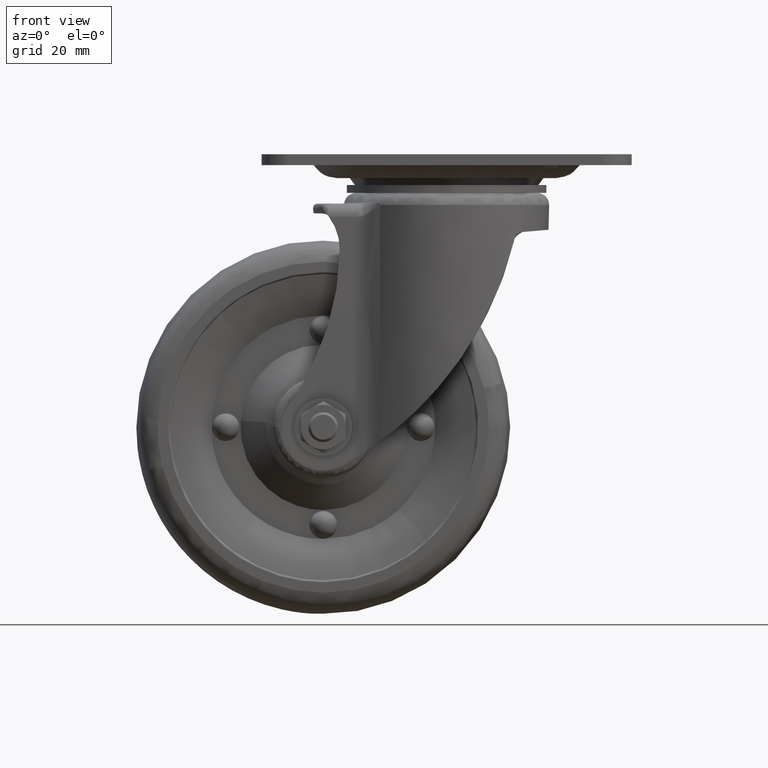
[diagram: clean part render]
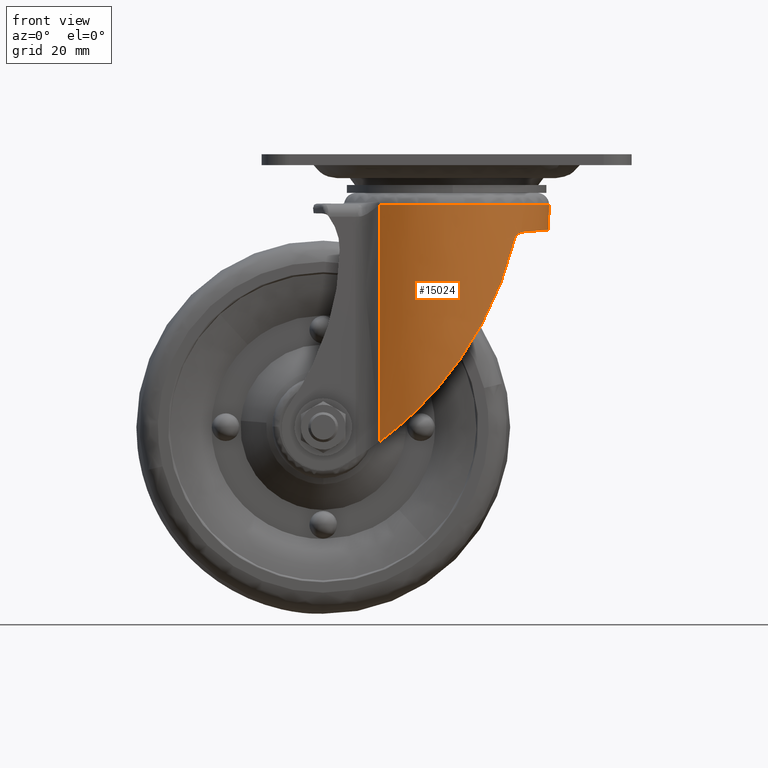
[diagram: same view with one face highlighted and labeled with its STEP entity id]
A machine part, front view. The second image highlights one B-rep face of the part: STEP entity #15024.
In plain terms, the highlighted face is a freeform B-spline surface patch.
Its self-contained STEP definition (entity closure, byte-faithful):
#13117=CARTESIAN_POINT('',(-17.809410793725050,-20.855587073500232,-13.514989000000019));
#13118=VERTEX_POINT('',#13117);
#13132=CARTESIAN_POINT('',(27.416338891092579,-0.689192867609886,-13.514988998429271));
#13133=VERTEX_POINT('',#13132);
#13134=CARTESIAN_POINT('',(27.416338891092579,-0.689192867609886,-13.514988998429271));
#13135=CARTESIAN_POINT('',(27.370144709573019,-2.538608974518831,-13.514988998454569));
#13136=CARTESIAN_POINT('',(27.013193768993290,-5.345576483390386,-13.514988998501011));
#13137=CARTESIAN_POINT('',(25.943602558763601,-9.060891404035905,-13.514988998580170));
#13138=CARTESIAN_POINT('',(24.625711979083309,-12.264767364244580,-13.514988998659570));
#13139=CARTESIAN_POINT('',(22.922329263105610,-15.194380939394270,-13.514988998746979));
#13140=CARTESIAN_POINT('',(20.815032832213021,-17.942075658335170,-13.514988998843270));
#13141=CARTESIAN_POINT('',(18.472981436152569,-20.385558734705899,-13.514988998942989));
#13142=CARTESIAN_POINT('',(15.122858887308730,-23.041036458252389,-13.514988999074051));
#13143=CARTESIAN_POINT('',(11.077529312509361,-25.243881503777590,-13.514988999219961));
#13144=CARTESIAN_POINT('',(7.174826760455997,-26.548468967180280,-13.514988999349679));
#13145=CARTESIAN_POINT('',(3.461774166919727,-27.282203580856720,-13.514988999466830));
#13146=CARTESIAN_POINT('',(-0.482874379210664,-27.548978950495190,-13.514988999584510));
#13147=CARTESIAN_POINT('',(-4.500102279900261,-27.147139718630221,-13.514988999695721));
#13148=CARTESIAN_POINT('',(-8.568044536720644,-26.149740407417241,-13.514988999800710));
#13149=CARTESIAN_POINT('',(-12.990060803550790,-24.377356289009509,-13.514988999905819));
#13150=CARTESIAN_POINT('',(-16.158199184875048,-22.266249754600238,-13.514988999970470));
#13151=CARTESIAN_POINT('',(-17.809410793725050,-20.855587073500232,-13.514989000000019));
#13152=B_SPLINE_CURVE_WITH_KNOTS('',3,(#13134,#13135,#13136,#13137,#13138,#13139,#13140,#13141,#13142,#13143,#13144,#13145,#13146,#13147,#13148,#13149,#13150,#13151),.UNSPECIFIED.,.F.,.U.,(4,1,1,1,1,1,1,1,1,1,1,1,1,1,1,4),(0.000000059303176,5.549911955859287,8.445546837084201,11.582500087607579,15.925952745662309,18.580291807629589,21.958540630681661,26.060692113063919,31.369221516042700,35.712679370151633,38.367024260346007,42.710492123987308,47.536550693371581,50.432188047149062,55.258238666136627,61.773375143991487),.UNSPECIFIED.);
#13153=EDGE_CURVE('',#13133,#13118,#13152,.T.);
#13204=CARTESIAN_POINT('',(27.425000000000001,0.0,-13.514989000000019));
#13205=VERTEX_POINT('',#13204);
#13206=CARTESIAN_POINT('',(27.425000000000001,0.0,-13.514989000000019));
#13207=CARTESIAN_POINT('',(27.424999999999994,-0.344650856021881,-13.514988999214646));
#13208=CARTESIAN_POINT('',(27.416338891092575,-0.689192867609886,-13.514988998429267));
#13216=(BOUNDED_CURVE()B_SPLINE_CURVE(2,(#13206,#13207,#13208),.UNSPECIFIED.,.F.,.U.)B_SPLINE_CURVE_WITH_KNOTS((3,3),(0.0,0.011612402897055),.UNSPECIFIED.)CURVE()GEOMETRIC_REPRESENTATION_ITEM()RATIONAL_B_SPLINE_CURVE((1.0,0.996335781353829,0.992841764240547))REPRESENTATION_ITEM(''));
#13217=EDGE_CURVE('',#13205,#13133,#13216,.T.);
#13219=CARTESIAN_POINT('',(-17.809410793729342,20.855587073496569,-13.514989000000019));
#13220=VERTEX_POINT('',#13219);
#13221=CARTESIAN_POINT('',(-17.809410793729342,20.855587073496569,-13.514989000000019));
#13222=CARTESIAN_POINT('',(-17.407408522345190,21.198869900111600,-13.514988999999980));
#13223=CARTESIAN_POINT('',(-16.963816380801472,21.556077711161500,-13.514989000000080));
#13224=CARTESIAN_POINT('',(-16.476828912088688,21.923360915446711,-13.514989000000011));
#13225=CARTESIAN_POINT('',(-16.379339016086860,21.996737665960801,-13.514989000000019));
#13226=CARTESIAN_POINT('',(-15.268520955753900,22.820042821982021,-13.514989000000041));
#13227=CARTESIAN_POINT('',(-12.960629670096759,24.281173016396171,-13.514989000000000));
#13228=CARTESIAN_POINT('',(-9.605727643534490,25.769878054157349,-13.514989000000069));
#13229=CARTESIAN_POINT('',(-6.092184222451769,26.813076968431751,-13.514988999999950));
#13230=CARTESIAN_POINT('',(-2.070053252011648,27.479182623380190,-13.514989000000011));
#13231=CARTESIAN_POINT('',(2.179402166805020,27.458134872017212,-13.514989000000240));
#13232=CARTESIAN_POINT('',(5.876909756450394,26.841728988624691,-13.514988999999771));
#13233=CARTESIAN_POINT('',(9.484355174460896,25.836331577147330,-13.514989000000350));
#13234=CARTESIAN_POINT('',(13.224826475161059,24.191795464136980,-13.514988999999989));
#13235=CARTESIAN_POINT('',(17.422271081200002,21.368223424400870,-13.514988999999920));
#13236=CARTESIAN_POINT('',(20.531500198458328,18.352907396947959,-13.514989000000311));
#13237=CARTESIAN_POINT('',(22.784350671851509,15.358114755336659,-13.514989000000000));
#13238=CARTESIAN_POINT('',(24.412391751092802,12.631443268260780,-13.514989000000041));
#13239=CARTESIAN_POINT('',(25.682782665757330,9.806462986611079,-13.514989000000019));
#13240=CARTESIAN_POINT('',(26.628994847960900,6.774218926554003,-13.514989000000019));
#13241=CARTESIAN_POINT('',(27.262600899882749,3.578544758500911,-13.514988999999950));
#13242=CARTESIAN_POINT('',(27.425064571824890,1.301300663855342,-13.514989000000440));
#13243=CARTESIAN_POINT('',(27.425000000000001,0.0,-13.514989000000019));
#13244=B_SPLINE_CURVE_WITH_KNOTS('',3,(#13221,#13222,#13223,#13224,#13225,#13226,#13227,#13228,#13229,#13230,#13231,#13232,#13233,#13234,#13235,#13236,#13237,#13238,#13239,#13240,#13241,#13242,#13243),.UNSPECIFIED.,.F.,.U.,(4,1,1,1,1,1,1,1,1,1,1,1,1,1,1,1,1,1,1,1,4),(-0.000008777833926,1.585889864309991,1.707888320422747,1.829886776535410,1.951946886555604,5.855864107907983,10.003764080079240,12.931704660612970,16.835638888398140,22.203548854672849,25.619473519935749,28.059422607863102,33.427209471957703,37.819159144268937,43.187047255784151,46.358989983688858,49.042945396970012,52.702884044444708,55.630827793817041,58.558739524195161,62.462642689829387),.UNSPECIFIED.);
#13245=EDGE_CURVE('',#13220,#13205,#13244,.T.);
#13880=CARTESIAN_POINT('',(-17.846202660859849,20.824112840347350,-13.547320495268080));
#13881=VERTEX_POINT('',#13880);
#13882=CARTESIAN_POINT('',(-17.846202660859849,20.824112840347350,-13.547320495268080));
#13883=CARTESIAN_POINT('',(-17.809410793729342,20.855587073496569,-13.514989000000019));
#13884=QUASI_UNIFORM_CURVE('',1,(#13882,#13883),.UNSPECIFIED.,.F.,.U.);
#13885=EDGE_CURVE('',#13881,#13220,#13884,.T.);
#14472=CARTESIAN_POINT('',(-17.846202660859799,20.824112840347350,-76.803480371900108));
#14473=VERTEX_POINT('',#14472);
#14474=CARTESIAN_POINT('',(-17.846202660859799,20.824112840347350,-76.803480371900108));
#14475=CARTESIAN_POINT('',(-17.846202660859849,20.824112840347350,-13.547320495268080));
#14476=QUASI_UNIFORM_CURVE('',1,(#14474,#14475),.UNSPECIFIED.,.F.,.U.);
#14477=EDGE_CURVE('',#14473,#13881,#14476,.T.);
#14675=CARTESIAN_POINT('',(18.218237527660801,20.499425513553600,-22.550122951543550));
#14676=VERTEX_POINT('',#14675);
#14677=CARTESIAN_POINT('',(-17.846202660859799,20.824112840347350,-76.803480371900108));
#14678=CARTESIAN_POINT('',(-17.499274141282331,21.121431735308299,-76.547995395013587));
#14679=CARTESIAN_POINT('',(-17.147941598564341,21.407471329844942,-76.285633717089070));
#14680=CARTESIAN_POINT('',(-16.132866213155008,22.193619586237251,-75.516250786476448));
#14681=CARTESIAN_POINT('',(-15.459352316206070,22.667142128612319,-74.992201255253306));
#14682=CARTESIAN_POINT('',(-14.603067683565071,23.214683256564690,-74.306155545968849));
#14683=CARTESIAN_POINT('',(-14.431124240889361,23.321940264616419,-74.167420682210818));
#14684=CARTESIAN_POINT('',(-14.087490623986840,23.531104054295010,-73.888159347732852));
#14685=CARTESIAN_POINT('',(-13.915597003169379,23.633142688656349,-73.747470538788932));
#14686=CARTESIAN_POINT('',(-13.399770252729301,23.931859005839769,-73.322240444555348));
#14687=CARTESIAN_POINT('',(-13.055692544603589,24.121141598944430,-73.034536076610678));
#14688=CARTESIAN_POINT('',(-12.023504080352289,24.661067695302489,-72.158833086877777));
#14689=CARTESIAN_POINT('',(-11.335452967758179,24.983841847963699,-71.558251667962466));
#14690=CARTESIAN_POINT('',(-9.962389512339543,25.562387844621650,-70.323665558663734));
#14691=CARTESIAN_POINT('',(-9.277371663200638,25.818141976381131,-69.689658945723266));
#14692=CARTESIAN_POINT('',(-7.912834551112366,26.268482294905461,-68.388147904290932));
#14693=CARTESIAN_POINT('',(-7.233311548883998,26.463056798000149,-67.720642324951541));
#14694=CARTESIAN_POINT('',(-6.388707738955641,26.671044925950241,-66.865177949455457));
#14695=CARTESIAN_POINT('',(-6.220026430843379,26.710878947901399,-66.693030604685646));
#14696=CARTESIAN_POINT('',(-5.883174925941185,26.787087272976638,-66.346622005062713));
#14697=CARTESIAN_POINT('',(-5.714997491031681,26.823459301244490,-66.172350116272696));
#14698=CARTESIAN_POINT('',(-5.213057161077494,26.927138318716061,-65.648230405210754));
#14699=CARTESIAN_POINT('',(-4.881279129563636,26.989152958383212,-65.296457793049044));
#14700=CARTESIAN_POINT('',(-3.894473681134695,27.155260211253509,-64.234090477251698));
#14701=CARTESIAN_POINT('',(-3.247973250698395,27.239453665132981,-63.516448021708392));
#14702=CARTESIAN_POINT('',(-1.342496695311521,27.421821401977951,-61.335495605275163));
#14703=CARTESIAN_POINT('',(-0.117517192353360,27.450131687863870,-59.844186824336539));
#14704=CARTESIAN_POINT('',(2.241564612659198,27.358709721995989,-56.787134320160561));
#14705=CARTESIAN_POINT('',(3.375669281817199,27.238782726746809,-55.221390435551193));
#14706=CARTESIAN_POINT('',(4.599786899427679,27.036849613132851,-53.417724313674903));
#14707=CARTESIAN_POINT('',(4.735080592881124,27.013477908442351,-53.216730255349049));
#14708=CARTESIAN_POINT('',(5.004225943392333,26.964916236215458,-52.813566621500058));
#14709=CARTESIAN_POINT('',(5.138145585606142,26.939712733213049,-52.611293146025012));
#14710=CARTESIAN_POINT('',(5.537201537092662,26.861556008725739,-52.003522362085562));
#14711=CARTESIAN_POINT('',(5.799489303414649,26.806091547136930,-51.597305592223478));
#14712=CARTESIAN_POINT('',(6.575325825574135,26.630371133464049,-50.375490229243873));
#14713=CARTESIAN_POINT('',(7.077854183553438,26.500800927659320,-49.556726847343597));
#14714=CARTESIAN_POINT('',(8.542875397278900,26.080302164234521,-47.087324869607947));
#14715=CARTESIAN_POINT('',(9.462883679825231,25.757693407021350,-45.423588522407009));
#14716=CARTESIAN_POINT('',(11.195475287706749,25.053269612493992,-42.058561333532879));
#14717=CARTESIAN_POINT('',(12.008041545570050,24.671361483284770,-40.357282288096087));
#14718=CARTESIAN_POINT('',(13.529273710577160,23.871068915963381,-36.913989581632762));
#14719=CARTESIAN_POINT('',(14.237933254496239,23.452610598758358,-35.171988633084801));
#14720=CARTESIAN_POINT('',(15.552881323395169,22.602026464589141,-31.643124326312140));
#14721=CARTESIAN_POINT('',(16.159172310454100,22.169835250745880,-29.856275997792249));
#14722=CARTESIAN_POINT('',(16.852796636866849,21.636646257237821,-27.591246867906371));
#14723=CARTESIAN_POINT('',(16.988337014127300,21.530341498079441,-27.136543003764370));
#14724=CARTESIAN_POINT('',(17.252554897187650,21.319206228281530,-26.225299247312119));
#14725=CARTESIAN_POINT('',(17.381281305529871,21.214339226254712,-25.768606171467731));
#14726=CARTESIAN_POINT('',(17.757333130177859,20.902483396099360,-24.395173862722942));
#14727=CARTESIAN_POINT('',(17.994535970708160,20.698233337225830,-23.475084294864772));
#14728=CARTESIAN_POINT('',(18.218237527660801,20.499425513553600,-22.550122951543550));
#14729=B_SPLINE_CURVE_WITH_KNOTS('',3,(#14677,#14678,#14679,#14680,#14681,#14682,#14683,#14684,#14685,#14686,#14687,#14688,#14689,#14690,#14691,#14692,#14693,#14694,#14695,#14696,#14697,#14698,#14699,#14700,#14701,#14702,#14703,#14704,#14705,#14706,#14707,#14708,#14709,#14710,#14711,#14712,#14713,#14714,#14715,#14716,#14717,#14718,#14719,#14720,#14721,#14722,#14723,#14724,#14725,#14726,#14727,#14728),.UNSPECIFIED.,.F.,.U.,(4,2,2,2,2,2,2,2,2,2,2,2,2,2,2,2,2,2,2,2,2,2,2,2,2,4),(0.632209965600658,0.640625000000003,0.656250000000003,0.660156250000003,0.664062500000003,0.671875000000003,0.687500000000003,0.703125000000003,0.718750000000003,0.722656250000003,0.726562500000003,0.734375000000003,0.750000000000003,0.781250000000002,0.812500000000002,0.816406250000002,0.820312500000002,0.828125000000002,0.843750000000002,0.875000000000001,0.906250000000001,0.937500000000001,0.968750000000000,0.976562500000000,0.984375000000000,1.0),.UNSPECIFIED.);
#14730=EDGE_CURVE('',#14473,#14676,#14729,.T.);
#14754=CARTESIAN_POINT('',(20.251640745052299,18.493287218159349,-20.799690335686151));
#14755=VERTEX_POINT('',#14754);
#14763=CARTESIAN_POINT('',(20.251640745052299,18.493287218159349,-20.799690335686151));
#14764=CARTESIAN_POINT('',(20.051457648883240,18.712503850606780,-20.817352670176991));
#14765=CARTESIAN_POINT('',(19.851762030636440,18.924029185573850,-20.860939210974550));
#14766=CARTESIAN_POINT('',(19.554545553053231,19.229418895222320,-20.971230353685769));
#14767=CARTESIAN_POINT('',(19.455873501560369,19.329220280260831,-21.015555384535801));
#14768=CARTESIAN_POINT('',(19.308852462281539,19.475718932243190,-21.095236527322431));
#14769=CARTESIAN_POINT('',(19.259837306789830,19.524186674206049,-21.124124262384068));
#14770=CARTESIAN_POINT('',(19.163315125276998,19.618933502680200,-21.186066289971858));
#14771=CARTESIAN_POINT('',(19.115791571863490,19.665232334046760,-21.219108070183690));
#14772=CARTESIAN_POINT('',(18.975641657802861,19.800821936437831,-21.324782868492630));
#14773=CARTESIAN_POINT('',(18.885406852131240,19.886831117094001,-21.403902736792340));
#14774=CARTESIAN_POINT('',(18.756095925049230,20.008573046645239,-21.537825802908319));
#14775=CARTESIAN_POINT('',(18.713847770448020,20.048082550997488,-21.585217964171012));
#14776=CARTESIAN_POINT('',(18.632458396351598,20.123747326363912,-21.684768005696331));
#14777=CARTESIAN_POINT('',(18.593498018839860,20.159736971014262,-21.736672179396709));
#14778=CARTESIAN_POINT('',(18.482205448278300,20.262005331061282,-21.899110312445309));
#14779=CARTESIAN_POINT('',(18.415383779188780,20.322654828720690,-22.016280666847919));
#14780=CARTESIAN_POINT('',(18.328819591386551,20.400649643870139,-22.207936823569771));
#14781=CARTESIAN_POINT('',(18.302502736310370,20.424250193309991,-22.274028814790100));
#14782=CARTESIAN_POINT('',(18.255890259338290,20.465924684962779,-22.409340996175018));
#14783=CARTESIAN_POINT('',(18.235492299885660,20.484090862410788,-22.478777938360139));
#14784=CARTESIAN_POINT('',(18.218237527660801,20.499425513553600,-22.550122951543550));
#14785=B_SPLINE_CURVE_WITH_KNOTS('',3,(#14763,#14764,#14765,#14766,#14767,#14768,#14769,#14770,#14771,#14772,#14773,#14774,#14775,#14776,#14777,#14778,#14779,#14780,#14781,#14782,#14783,#14784),.UNSPECIFIED.,.F.,.U.,(4,2,2,2,2,2,2,2,2,2,4),(0.0,0.249999999999999,0.374999999999998,0.437499999999997,0.499999999999996,0.624999999999996,0.687499999999996,0.749999999999997,0.875000000000000,0.937500000000000,1.0),.UNSPECIFIED.);
#14786=EDGE_CURVE('',#14755,#14676,#14785,.T.);
#14805=CARTESIAN_POINT('',(18.218237527660801,-20.499425513553600,-22.550122951543550));
#14806=VERTEX_POINT('',#14805);
#14813=CARTESIAN_POINT('',(20.251640745052299,-18.493287218159349,-20.799690335686151));
#14814=VERTEX_POINT('',#14813);
#14820=CARTESIAN_POINT('',(18.218237527660801,-20.499425513553600,-22.550122951543550));
#14821=CARTESIAN_POINT('',(18.252725804954711,-20.468775111802351,-22.407520860589170));
#14822=CARTESIAN_POINT('',(18.299326283089250,-20.427214807338189,-22.273833455190299));
#14823=CARTESIAN_POINT('',(18.384363723735191,-20.350608124167550,-22.084674334017048));
#14824=CARTESIAN_POINT('',(18.415258602467858,-20.322669672453500,-22.023536520474391));
#14825=CARTESIAN_POINT('',(18.465228192101431,-20.277240432723591,-21.934592556037209));
#14826=CARTESIAN_POINT('',(18.482530923842120,-20.261472096585390,-21.905345696836260));
#14827=CARTESIAN_POINT('',(18.517960831629392,-20.229096062595769,-21.848330447410760));
#14828=CARTESIAN_POINT('',(18.536117988758491,-20.212461280064328,-21.820501982942471));
#14829=CARTESIAN_POINT('',(18.628979447283861,-20.127144040153709,-21.684581630303370));
#14830=CARTESIAN_POINT('',(18.709851811161819,-20.052084904392490,-21.586069711792451));
#14831=CARTESIAN_POINT('',(18.839273461100252,-19.930276218859490,-21.451515536325100));
#14832=CARTESIAN_POINT('',(18.883908772965260,-19.887999329173510,-21.408788261166009));
#14833=CARTESIAN_POINT('',(18.974320231627619,-19.801760012951540,-21.328738493543138));
#14834=CARTESIAN_POINT('',(19.020237356574938,-19.757666542941720,-21.291251089308879));
#14835=CARTESIAN_POINT('',(19.159840539806950,-19.622637457265519,-21.185713519354810));
#14836=CARTESIAN_POINT('',(19.255364254245009,-19.528965514375379,-21.124548011967970));
#14837=CARTESIAN_POINT('',(19.401561452064900,-19.383363191873560,-21.044841887449000));
#14838=CARTESIAN_POINT('',(19.450783199356788,-19.333976497917291,-21.020291662638598));
#14839=CARTESIAN_POINT('',(19.550116366692869,-19.233527090452402,-20.975049162592629));
#14840=CARTESIAN_POINT('',(19.600288692907480,-19.182399814650370,-20.954344630536671));
#14841=CARTESIAN_POINT('',(19.750535195396449,-19.028074061056881,-20.898333532153838));
#14842=CARTESIAN_POINT('',(19.850813933648549,-18.923455261266628,-20.868858646713289));
#14843=CARTESIAN_POINT('',(20.051314056040809,-18.710873242035380,-20.823948407751359));
#14844=CARTESIAN_POINT('',(20.151536817321340,-18.602909091094180,-20.808522595198909));
#14845=CARTESIAN_POINT('',(20.251640745052299,-18.493287218159349,-20.799690335686151));
#14846=B_SPLINE_CURVE_WITH_KNOTS('',3,(#14820,#14821,#14822,#14823,#14824,#14825,#14826,#14827,#14828,#14829,#14830,#14831,#14832,#14833,#14834,#14835,#14836,#14837,#14838,#14839,#14840,#14841,#14842,#14843,#14844,#14845),.UNSPECIFIED.,.F.,.U.,(4,2,2,2,2,2,2,2,2,2,2,2,4),(0.0,0.125000000000012,0.187500000000017,0.218750000000019,0.250000000000020,0.375000000000016,0.437500000000014,0.500000000000012,0.625000000000010,0.687500000000009,0.750000000000008,0.875000000000004,1.0),.UNSPECIFIED.);
#14847=EDGE_CURVE('',#14806,#14814,#14846,.T.);
#14857=CARTESIAN_POINT('',(25.921733000000000,8.955131672773399,-20.299413000000150));
#14858=VERTEX_POINT('',#14857);
#14859=CARTESIAN_POINT('',(25.921733000000000,-8.955131672773620,-20.299413000000150));
#14860=VERTEX_POINT('',#14859);
#14866=CARTESIAN_POINT('',(20.251640745052299,-18.493287218159349,-20.799690335686151));
#14867=CARTESIAN_POINT('',(24.071847841164693,-14.309852398296790,-20.462630030160476));
#14868=CARTESIAN_POINT('',(25.921732999999939,-8.955131672773632,-20.299413000000222));
#14876=(BOUNDED_CURVE()B_SPLINE_CURVE(2,(#14866,#14867,#14868),.UNSPECIFIED.,.F.,.U.)CURVE()GEOMETRIC_REPRESENTATION_ITEM()QUASI_UNIFORM_CURVE()RATIONAL_B_SPLINE_CURVE((1.0,0.979323309436455,1.0))REPRESENTATION_ITEM(''));
#14877=EDGE_CURVE('',#14814,#14860,#14876,.T.);
#14882=CARTESIAN_POINT('',(25.921733000000021,8.955131672773398,-20.299413000000211));
#14883=CARTESIAN_POINT('',(24.071847841164786,14.309852398296675,-20.462630030160472));
#14884=CARTESIAN_POINT('',(20.251640745052331,18.493287218159349,-20.799690335686261));
#14892=(BOUNDED_CURVE()B_SPLINE_CURVE(2,(#14882,#14883,#14884),.UNSPECIFIED.,.F.,.U.)CURVE()GEOMETRIC_REPRESENTATION_ITEM()QUASI_UNIFORM_CURVE()RATIONAL_B_SPLINE_CURVE((1.0,0.979323309436463,1.0))REPRESENTATION_ITEM(''));
#14893=EDGE_CURVE('',#14858,#14755,#14892,.T.);
#14904=CARTESIAN_POINT('',(25.921733000000000,-8.955131672773620,-20.299413000000150));
#14905=CARTESIAN_POINT('',(29.015445263632632,-1.335737E-013,-20.092757621637393));
#14906=CARTESIAN_POINT('',(25.921733000000021,8.955131672773389,-20.299413000000179));
#14914=(BOUNDED_CURVE()B_SPLINE_CURVE(2,(#14904,#14905,#14906),.UNSPECIFIED.,.F.,.U.)CURVE()GEOMETRIC_REPRESENTATION_ITEM()QUASI_UNIFORM_CURVE()RATIONAL_B_SPLINE_CURVE((1.0,0.945186253418413,1.0))REPRESENTATION_ITEM(''));
#14915=EDGE_CURVE('',#14860,#14858,#14914,.T.);
#14920=CARTESIAN_POINT('',(-18.385198938305908,20.349817812425620,-78.385692656236884));
#14921=CARTESIAN_POINT('',(-18.385198938305908,20.349817812425620,-11.893221406984081));
#14922=CARTESIAN_POINT('',(1.496482991972139,38.312075798494263,-78.385692656236884));
#14923=CARTESIAN_POINT('',(1.496482991972139,38.312075798494263,-11.893221406984082));
#14924=CARTESIAN_POINT('',(19.916503527732772,18.853740006423351,-78.385692656236884));
#14925=CARTESIAN_POINT('',(19.916503527732772,18.853740006423351,-11.893221406984081));
#14926=CARTESIAN_POINT('',(38.336524063493400,-0.604595785647565,-78.385692656236884));
#14927=CARTESIAN_POINT('',(38.336524063493400,-0.604595785647565,-11.893221406984082));
#14928=CARTESIAN_POINT('',(19.312071441727021,-19.472404105031089,-78.385692656236884));
#14929=CARTESIAN_POINT('',(19.312071441727021,-19.472404105031089,-11.893221406984081));
#14930=CARTESIAN_POINT('',(0.287618819960649,-38.340212424414602,-78.385692656236884));
#14931=CARTESIAN_POINT('',(0.287618819960649,-38.340212424414602,-11.893221406984082));
#14932=CARTESIAN_POINT('',(-19.017760031992360,-19.759945049659279,-78.385692656236884));
#14933=CARTESIAN_POINT('',(-19.017760031992360,-19.759945049659279,-11.893221406984081));
#14941=(BOUNDED_SURFACE()B_SPLINE_SURFACE(1,2,((#14920,#14922,#14924,#14926,#14928,#14930,#14932),(#14921,#14923,#14925,#14927,#14929,#14931,#14933)),.UNSPECIFIED.,.F.,.F.,.U.)B_SPLINE_SURFACE_WITH_KNOTS((2,2),(3,2,2,3),(0.0,66.492471249252802),(0.0,44.693308853248780,89.386617706497560,134.079926559746410),.UNSPECIFIED.)GEOMETRIC_REPRESENTATION_ITEM()RATIONAL_B_SPLINE_SURFACE(((1.0,0.715286291066052,1.0,0.715286291066052,1.0,0.715286291066052,1.0),(1.0,0.715286291066052,1.0,0.715286291066052,1.0,0.715286291066052,1.0)))REPRESENTATION_ITEM('')SURFACE());
#14942=ORIENTED_EDGE('',*,*,#14477,.T.);
#14943=ORIENTED_EDGE('',*,*,#13885,.T.);
#14944=ORIENTED_EDGE('',*,*,#13245,.T.);
#14945=ORIENTED_EDGE('',*,*,#13217,.T.);
#14946=ORIENTED_EDGE('',*,*,#13153,.T.);
#14947=CARTESIAN_POINT('',(-17.846202660859849,-20.824112840347350,-13.547320495268080));
#14948=VERTEX_POINT('',#14947);
#14949=CARTESIAN_POINT('',(-17.809410793725050,-20.855587073500232,-13.514989000000019));
#14950=CARTESIAN_POINT('',(-17.846202660859849,-20.824112840347350,-13.547320495268080));
#14951=QUASI_UNIFORM_CURVE('',1,(#14949,#14950),.UNSPECIFIED.,.F.,.U.);
#14952=EDGE_CURVE('',#13118,#14948,#14951,.T.);
#14953=ORIENTED_EDGE('',*,*,#14952,.T.);
#14954=CARTESIAN_POINT('',(-17.846202660859849,-20.824112840347350,-76.803480371900108));
#14955=VERTEX_POINT('',#14954);
#14956=CARTESIAN_POINT('',(-17.846202660859849,-20.824112840347350,-13.547320495268080));
#14957=CARTESIAN_POINT('',(-17.846202660859849,-20.824112840347350,-76.803480371900108));
#14958=QUASI_UNIFORM_CURVE('',1,(#14956,#14957),.UNSPECIFIED.,.F.,.U.);
#14959=EDGE_CURVE('',#14948,#14955,#14958,.T.);
#14960=ORIENTED_EDGE('',*,*,#14959,.T.);
#14961=CARTESIAN_POINT('',(18.218237527660801,-20.499425513553600,-22.550122951543550));
#14962=CARTESIAN_POINT('',(17.770487389087361,-20.897349756463761,-24.401479731169189));
#14963=CARTESIAN_POINT('',(17.270206002355309,-21.315618520003419,-26.227248144017970));
#14964=CARTESIAN_POINT('',(16.166104061736661,-22.164672064328030,-29.834578945839478));
#14965=CARTESIAN_POINT('',(15.562274888637710,-22.595506066829561,-31.616126775091171));
#14966=CARTESIAN_POINT('',(14.250388048164281,-23.444993806832031,-35.140317722870847));
#14967=CARTESIAN_POINT('',(13.542331324284600,-23.863711777656391,-36.882946713585667));
#14968=CARTESIAN_POINT('',(12.019237837326431,-24.665956282162199,-40.333396602365752));
#14969=CARTESIAN_POINT('',(11.204212023488809,-25.049559624385310,-42.041204531761863));
#14970=CARTESIAN_POINT('',(9.897697152722092,-25.580994134977018,-44.579284350252642));
#14971=CARTESIAN_POINT('',(9.448177681586216,-25.750800229906531,-45.421367219387513));
#14972=CARTESIAN_POINT('',(8.752220127915759,-25.992105629947531,-46.678854485675522));
#14973=CARTESIAN_POINT('',(8.516619808450624,-26.070305032760238,-47.097077238338393));
#14974=CARTESIAN_POINT('',(8.157701919176331,-26.183931570976529,-47.723035641764518));
#14975=CARTESIAN_POINT('',(8.037142919307048,-26.221193802755501,-47.931457151091152));
#14976=CARTESIAN_POINT('',(7.794581940042615,-26.294318076858222,-48.347146688547369));
#14977=CARTESIAN_POINT('',(7.672530165468266,-26.330196132586579,-48.554502060001731));
#14978=CARTESIAN_POINT('',(6.567120398573947,-26.646729555097100,-50.416311609571132));
#14979=CARTESIAN_POINT('',(5.535218987680676,-26.882966672260551,-52.040075369358888));
#14980=CARTESIAN_POINT('',(3.371677958050786,-27.239022267523609,-55.226602310405497));
#14981=CARTESIAN_POINT('',(2.240048152417292,-27.358985904884939,-56.789360562966003));
#14982=CARTESIAN_POINT('',(0.465719796559542,-27.427432530010950,-59.088254017781011));
#14983=CARTESIAN_POINT('',(-0.138550851085662,-27.431603346471690,-59.847006374153828));
#14984=CARTESIAN_POINT('',(-1.064603414497735,-27.406068724717951,-60.973843105856538));
#14985=CARTESIAN_POINT('',(-1.376563123712738,-27.392252146956221,-61.347573148872449));
#14986=CARTESIAN_POINT('',(-1.849477219833700,-27.363022561338401,-61.905346337281820));
#14987=CARTESIAN_POINT('',(-2.008049294316218,-27.351852048262661,-62.090921148366377));
#14988=CARTESIAN_POINT('',(-2.326096762269571,-27.326641694343159,-62.460244666118257));
#14989=CARTESIAN_POINT('',(-2.485618338792106,-27.312600943202948,-62.644049895537187));
#14990=CARTESIAN_POINT('',(-3.285669985563378,-27.235060100660998,-63.558797783356397));
#14991=CARTESIAN_POINT('',(-3.933534530430942,-27.149575033976380,-64.276909205624179));
#14992=CARTESIAN_POINT('',(-5.243701089119761,-26.927230034215750,-65.685815312466588));
#14993=CARTESIAN_POINT('',(-5.906004834062998,-26.790378753142331,-66.376610487815640));
#14994=CARTESIAN_POINT('',(-7.243735026791113,-26.460037598205229,-67.730843779308060));
#14995=CARTESIAN_POINT('',(-7.919163905050292,-26.266560225298189,-68.394282674413176));
#14996=CARTESIAN_POINT('',(-9.281659999395114,-25.816586348312921,-69.693646562023389));
#14997=CARTESIAN_POINT('',(-9.968730820763330,-25.560108862007290,-70.329572830606111));
#14998=CARTESIAN_POINT('',(-10.833754348560230,-25.195151321305030,-71.107094956483934));
#14999=CARTESIAN_POINT('',(-11.007067506635259,-25.119937037909882,-71.261729678073891));
#15000=CARTESIAN_POINT('',(-11.354279895898779,-24.964917382794830,-71.569253149080822));
#15001=CARTESIAN_POINT('',(-11.528362962092530,-24.885022839367991,-71.722301104985817));
#15002=CARTESIAN_POINT('',(-12.049473993634290,-24.639163108416991,-72.177104319506199));
#15003=CARTESIAN_POINT('',(-12.395663562726821,-24.466910477867810,-72.474794844031152));
#15004=CARTESIAN_POINT('',(-13.429904600388790,-23.924349968049299,-73.351534239424652));
#15005=CARTESIAN_POINT('',(-14.113646891458229,-23.528280398381021,-73.914262224600066));
#15006=CARTESIAN_POINT('',(-15.465658099098050,-22.662489418495319,-74.997020669199145));
#15007=CARTESIAN_POINT('',(-16.133936779637800,-22.192786872995541,-75.517054774656344));
#15008=CARTESIAN_POINT('',(-17.121253779813220,-21.428172205232990,-76.265407922050898));
#15009=CARTESIAN_POINT('',(-17.447836222177621,-21.163276877063751,-76.509572496238846));
#15010=CARTESIAN_POINT('',(-17.796454910892141,-20.866669268764369,-76.766826489569638));
#15011=CARTESIAN_POINT('',(-17.821337353096990,-20.845422350421700,-76.785169072544505));
#15012=CARTESIAN_POINT('',(-17.846202674551058,-20.824112862581789,-76.803480379183654));
#15013=B_SPLINE_CURVE_WITH_KNOTS('',3,(#14961,#14962,#14963,#14964,#14965,#14966,#14967,#14968,#14969,#14970,#14971,#14972,#14973,#14974,#14975,#14976,#14977,#14978,#14979,#14980,#14981,#14982,#14983,#14984,#14985,#14986,#14987,#14988,#14989,#14990,#14991,#14992,#14993,#14994,#14995,#14996,#14997,#14998,#14999,#15000,#15001,#15002,#15003,#15004,#15005,#15006,#15007,#15008,#15009,#15010,#15011,#15012),.UNSPECIFIED.,.F.,.U.,(4,2,2,2,2,2,2,2,2,2,2,2,2,2,2,2,2,2,2,2,2,2,2,2,2,4),(0.0,0.031250000000000,0.062500000000000,0.093750000000000,0.125000000000000,0.140625000000000,0.148437500000000,0.152343750000000,0.156250000000000,0.187500000000000,0.218750000000001,0.234375000000001,0.242187500000001,0.246093750000001,0.250000000000001,0.265625000000001,0.281250000000001,0.296875000000001,0.312500000000001,0.316406250000001,0.320312500000001,0.328125000000001,0.343750000000001,0.359375000000001,0.367187500000001,0.367788411107174),.UNSPECIFIED.);
#15014=EDGE_CURVE('',#14806,#14955,#15013,.T.);
#15015=ORIENTED_EDGE('',*,*,#15014,.F.);
#15016=ORIENTED_EDGE('',*,*,#14847,.T.);
#15017=ORIENTED_EDGE('',*,*,#14877,.T.);
#15018=ORIENTED_EDGE('',*,*,#14915,.T.);
#15019=ORIENTED_EDGE('',*,*,#14893,.T.);
#15020=ORIENTED_EDGE('',*,*,#14786,.T.);
#15021=ORIENTED_EDGE('',*,*,#14730,.F.);
#15022=EDGE_LOOP('',(#14942,#14943,#14944,#14945,#14946,#14953,#14960,#15015,#15016,#15017,#15018,#15019,#15020,#15021));
#15023=FACE_OUTER_BOUND('',#15022,.T.);
#15024=ADVANCED_FACE('',(#15023),#14941,.T.);